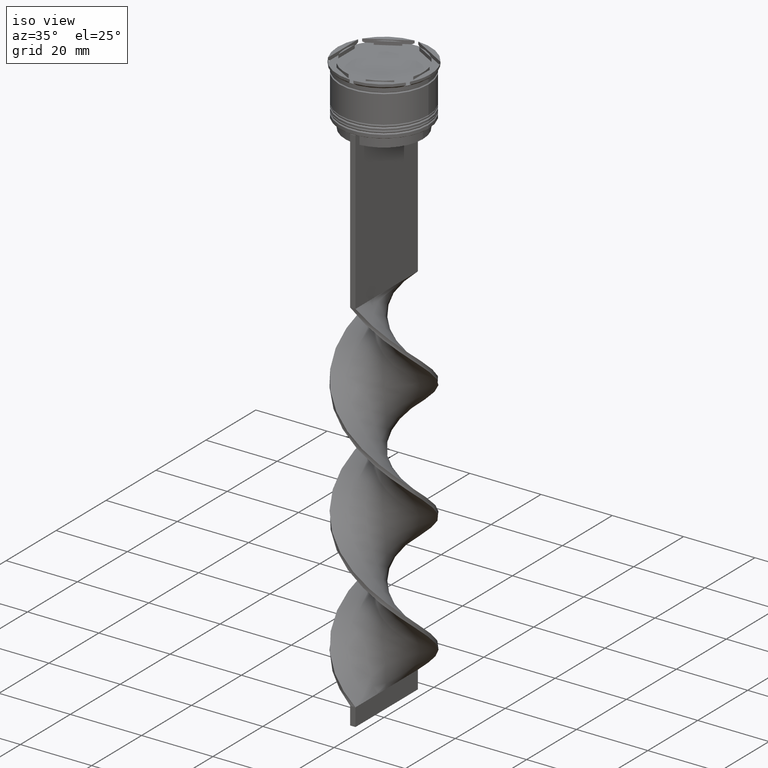
[diagram: clean part render]
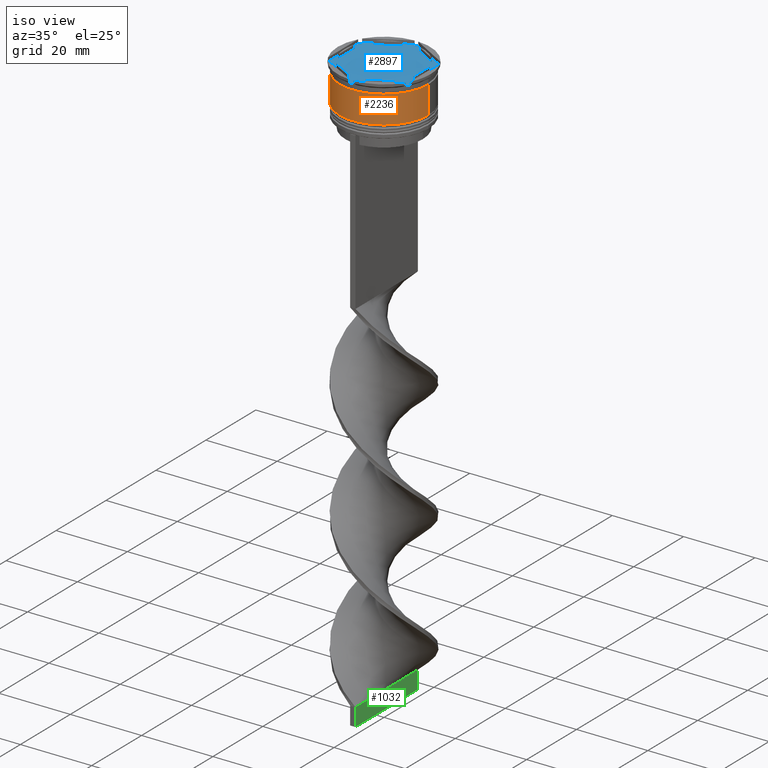
[diagram: same view with three faces highlighted in distinct colors, each labeled with its STEP entity id]
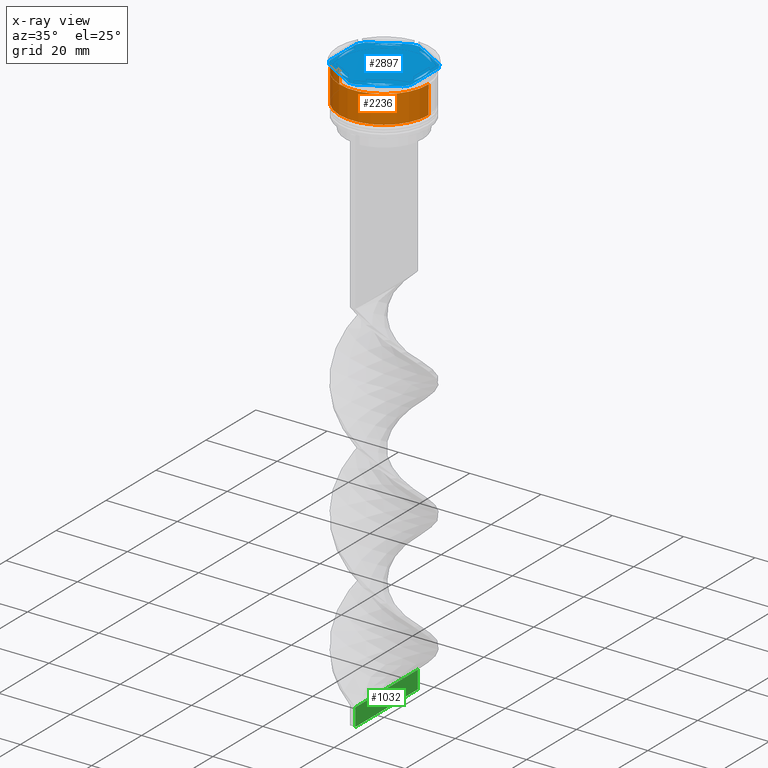
[diagram: x-ray of the same camera — body ghosted, the three highlighted faces saturated]
A machine part, iso view with three faces highlighted in distinct colors.
The next image is the same camera in x-ray (body ghosted, the three faces saturated) — at least one of them is partly hidden behind the body in this view.
Their STEP definitions:

[orange] entity #2236 — the highlighted cylindrical surface (partial cylindrical patch) has radius 12.5 mm, axis along (-0, -0, 1).
#214 = CARTESIAN_POINT ( 'NONE',  ( -12.50000000000000355, 1.530808498934191916E-15, -10.50000000000000178 ) ) ;
#223 = VECTOR ( 'NONE', #3344, 1000.000000000000000 ) ;
#271 = DIRECTION ( 'NONE',  ( -0.000000000000000000, -0.000000000000000000, 1.000000000000000000 ) ) ;
#332 = DIRECTION ( 'NONE',  ( 1.000000000000000000, 0.000000000000000000, 0.000000000000000000 ) ) ;
#362 = LINE ( 'NONE', #3480, #1026 ) ;
#412 = EDGE_CURVE ( 'NONE', #3936, #3861, #1887, .T. ) ;
#417 = EDGE_CURVE ( 'NONE', #2387, #3936, #1771, .T. ) ;
#609 = CARTESIAN_POINT ( 'NONE',  ( 12.49999999999999822, 0.000000000000000000, -2.699999999999999289 ) ) ;
#653 = CARTESIAN_POINT ( 'NONE',  ( -12.49999999999999822, 1.530808498934191324E-15, -2.699999999999999289 ) ) ;
#696 = VERTEX_POINT ( 'NONE', #1449 ) ;
#770 = ORIENTED_EDGE ( 'NONE', *, *, #412, .F. ) ;
#846 = EDGE_CURVE ( 'NONE', #696, #3861, #362, .T. ) ;
#981 = CYLINDRICAL_SURFACE ( 'NONE', #3025, 12.50000000000000000 ) ;
#1026 = VECTOR ( 'NONE', #1928, 1000.000000000000000 ) ;
#1105 = DIRECTION ( 'NONE',  ( -0.000000000000000000, -0.000000000000000000, 1.000000000000000000 ) ) ;
#1236 = CARTESIAN_POINT ( 'NONE',  ( 0.000000000000000000, 0.000000000000000000, 0.000000000000000000 ) ) ;
#1288 = EDGE_CURVE ( 'NONE', #2387, #696, #2688, .T. ) ;
#1420 = DIRECTION ( 'NONE',  ( 1.000000000000000000, 0.000000000000000000, 0.000000000000000000 ) ) ;
#1440 = CARTESIAN_POINT ( 'NONE',  ( -12.50000000000000000, 1.530808498934191521E-15, 0.000000000000000000 ) ) ;
#1449 = CARTESIAN_POINT ( 'NONE',  ( 12.50000000000000178, 0.000000000000000000, -10.50000000000000178 ) ) ;
#1771 = LINE ( 'NONE', #1440, #223 ) ;
#1887 = CIRCLE ( 'NONE', #2896, 12.49999999999999822 ) ;
#1928 = DIRECTION ( 'NONE',  ( -0.000000000000000000, -0.000000000000000000, 1.000000000000000000 ) ) ;
#2236 = ADVANCED_FACE ( 'NONE', ( #3200 ), #981, .T. ) ;
#2387 = VERTEX_POINT ( 'NONE', #214 ) ;
#2688 = CIRCLE ( 'NONE', #3088, 12.50000000000000178 ) ;
#2733 = CARTESIAN_POINT ( 'NONE',  ( 0.000000000000000000, 0.000000000000000000, -2.699999999999999289 ) ) ;
#2896 = AXIS2_PLACEMENT_3D ( 'NONE', #2733, #1105, #3385 ) ;
#2989 = CARTESIAN_POINT ( 'NONE',  ( 0.000000000000000000, 0.000000000000000000, -10.50000000000000178 ) ) ;
#3025 = AXIS2_PLACEMENT_3D ( 'NONE', #1236, #271, #332 ) ;
#3088 = AXIS2_PLACEMENT_3D ( 'NONE', #2989, #3988, #1420 ) ;
#3200 = FACE_OUTER_BOUND ( 'NONE', #3272, .T. ) ;
#3272 = EDGE_LOOP ( 'NONE', ( #4143, #3484, #3570, #770 ) ) ;
#3344 = DIRECTION ( 'NONE',  ( -0.000000000000000000, -0.000000000000000000, 1.000000000000000000 ) ) ;
#3385 = DIRECTION ( 'NONE',  ( 1.000000000000000000, 0.000000000000000000, 0.000000000000000000 ) ) ;
#3480 = CARTESIAN_POINT ( 'NONE',  ( 12.50000000000000000, 0.000000000000000000, 0.000000000000000000 ) ) ;
#3484 = ORIENTED_EDGE ( 'NONE', *, *, #1288, .T. ) ;
#3570 = ORIENTED_EDGE ( 'NONE', *, *, #846, .T. ) ;
#3861 = VERTEX_POINT ( 'NONE', #609 ) ;
#3936 = VERTEX_POINT ( 'NONE', #653 ) ;
#3988 = DIRECTION ( 'NONE',  ( -0.000000000000000000, -0.000000000000000000, 1.000000000000000000 ) ) ;
#4143 = ORIENTED_EDGE ( 'NONE', *, *, #417, .F. ) ;

[blue] entity #2897 — the highlighted planar face has unit normal (0, 0, 1).
#23 = CARTESIAN_POINT ( 'NONE',  ( 0.000000000000000000, 0.000000000000000000, -1.000000000000000000 ) ) ;
#34 = CIRCLE ( 'NONE', #4034, 11.00000000000000000 ) ;
#36 = DIRECTION ( 'NONE',  ( -1.430775808321104180E-16, -1.000000000000000000, 0.000000000000000000 ) ) ;
#43 = CARTESIAN_POINT ( 'NONE',  ( -11.50000000000000000, 5.388877434122992582, -1.000000000000000000 ) ) ;
#72 = CARTESIAN_POINT ( 'NONE',  ( 0.000000000000000000, 13.27905619136138959, -1.000000000000000000 ) ) ;
#103 = VERTEX_POINT ( 'NONE', #3521 ) ;
#113 = EDGE_CURVE ( 'NONE', #1591, #2309, #1838, .T. ) ;
#118 = CARTESIAN_POINT ( 'NONE',  ( 2.410545827099865868, -10.73262637081210791, -1.000000000000000888 ) ) ;
#138 = ORIENTED_EDGE ( 'NONE', *, *, #3693, .F. ) ;
#151 = CIRCLE ( 'NONE', #623, 12.69999999999999929 ) ;
#188 = ORIENTED_EDGE ( 'NONE', *, *, #2572, .F. ) ;
#192 = VERTEX_POINT ( 'NONE', #43 ) ;
#193 = EDGE_LOOP ( 'NONE', ( #2709, #2347, #2540, #3147, #2063, #909, #1445, #3479, #3003, #475, #781, #975 ) ) ;
#238 = EDGE_LOOP ( 'NONE', ( #2842, #3103 ) ) ;
#239 = EDGE_CURVE ( 'NONE', #192, #3230, #2154, .T. ) ;
#252 = CARTESIAN_POINT ( 'NONE',  ( -11.00000000000000000, 0.000000000000000000, -1.000000000000000000 ) ) ;
#293 = CIRCLE ( 'NONE', #1631, 12.69999999999999929 ) ;
#305 = CARTESIAN_POINT ( 'NONE',  ( -2.410545827099876082, -10.73262637081210435, -1.000000000000000888 ) ) ;
#326 = DIRECTION ( 'NONE',  ( 1.000000000000000000, 0.000000000000000000, 0.000000000000000000 ) ) ;
#342 = DIRECTION ( 'NONE',  ( 0.8660254037844387076, -0.4999999999999999445, 0.000000000000000000 ) ) ;
#345 = EDGE_LOOP ( 'NONE', ( #1511, #188 ) ) ;
#432 = VECTOR ( 'NONE', #1172, 1000.000000000000000 ) ;
#463 = DIRECTION ( 'NONE',  ( 0.000000000000000000, 0.000000000000000000, 1.000000000000000000 ) ) ;
#475 = ORIENTED_EDGE ( 'NONE', *, *, #3021, .F. ) ;
#488 = AXIS2_PLACEMENT_3D ( 'NONE', #859, #463, #2369 ) ;
#499 = CARTESIAN_POINT ( 'NONE',  ( 2.410545827099861871, 10.73262637081210791, -1.000000000000000888 ) ) ;
#503 = DIRECTION ( 'NONE',  ( 0.000000000000000000, 0.000000000000000000, 1.000000000000000000 ) ) ;
#509 = EDGE_CURVE ( 'NONE', #1597, #2071, #2388, .T. ) ;
#532 = CARTESIAN_POINT ( 'NONE',  ( -1.083095244168779780, -12.65373086058253982, -1.000000000000000000 ) ) ;
#534 = ORIENTED_EDGE ( 'NONE', *, *, #769, .F. ) ;
#537 = DIRECTION ( 'NONE',  ( 0.000000000000000000, 0.000000000000000000, 1.000000000000000000 ) ) ;
#565 = EDGE_CURVE ( 'NONE', #3656, #3230, #3017, .T. ) ;
#572 = DIRECTION ( 'NONE',  ( -0.000000000000000000, -0.000000000000000000, -1.000000000000000000 ) ) ;
#586 = FACE_BOUND ( 'NONE', #1796, .T. ) ;
#623 = AXIS2_PLACEMENT_3D ( 'NONE', #1284, #2588, #2516 ) ;
#630 = AXIS2_PLACEMENT_3D ( 'NONE', #1432, #503, #3044 ) ;
#659 = LINE ( 'NONE', #700, #1816 ) ;
#661 = DIRECTION ( 'NONE',  ( 0.8660254037844387076, -0.4999999999999997780, 0.000000000000000000 ) ) ;
#700 = CARTESIAN_POINT ( 'NONE',  ( 10.49999999999999289, -6.062177826491073063, -1.000000000000000888 ) ) ;
#730 = VERTEX_POINT ( 'NONE', #1844 ) ;
#769 = EDGE_CURVE ( 'NONE', #3888, #103, #1470, .T. ) ;
#774 = EDGE_CURVE ( 'NONE', #1916, #730, #2116, .T. ) ;
#781 = ORIENTED_EDGE ( 'NONE', *, *, #774, .T. ) ;
#809 = FACE_BOUND ( 'NONE', #1950, .T. ) ;
#811 = AXIS2_PLACEMENT_3D ( 'NONE', #1675, #3875, #1000 ) ;
#818 = VECTOR ( 'NONE', #1156, 1000.000000000000000 ) ;
#848 = DIRECTION ( 'NONE',  ( 1.000000000000000000, 0.000000000000000000, 0.000000000000000000 ) ) ;
#851 = EDGE_CURVE ( 'NONE', #1154, #1373, #151, .T. ) ;
#856 = CARTESIAN_POINT ( 'NONE',  ( 10.49999999999999467, -3.278719262151014835, -1.000000000000000888 ) ) ;
#859 = CARTESIAN_POINT ( 'NONE',  ( 0.000000000000000000, 0.000000000000000000, -1.000000000000000000 ) ) ;
#874 = ORIENTED_EDGE ( 'NONE', *, *, #1442, .F. ) ;
#891 = CARTESIAN_POINT ( 'NONE',  ( -11.50000000000000000, -5.388877434122992582, -1.000000000000000000 ) ) ;
#896 = CIRCLE ( 'NONE', #488, 11.00000000000000000 ) ;
#909 = ORIENTED_EDGE ( 'NONE', *, *, #239, .F. ) ;
#913 = ORIENTED_EDGE ( 'NONE', *, *, #1649, .F. ) ;
#918 = CARTESIAN_POINT ( 'NONE',  ( 11.49999999999999822, -6.639528095680694797, -1.000000000000000000 ) ) ;
#975 = ORIENTED_EDGE ( 'NONE', *, *, #1395, .F. ) ;
#1000 = DIRECTION ( 'NONE',  ( 1.000000000000000000, 0.000000000000000000, 0.000000000000000000 ) ) ;
#1009 = VERTEX_POINT ( 'NONE', #2957 ) ;
#1025 = CIRCLE ( 'NONE', #2029, 12.69999999999999929 ) ;
#1027 = ORIENTED_EDGE ( 'NONE', *, *, #3945, .F. ) ;
#1063 = CARTESIAN_POINT ( 'NONE',  ( 1.083095244168774673, -12.65373086058253982, -1.000000000000000000 ) ) ;
#1116 = CARTESIAN_POINT ( 'NONE',  ( 0.000000000000000000, 0.000000000000000000, -1.000000000000000000 ) ) ;
#1120 = ORIENTED_EDGE ( 'NONE', *, *, #3024, .F. ) ;
#1154 = VERTEX_POINT ( 'NONE', #1984 ) ;
#1156 = DIRECTION ( 'NONE',  ( -0.8660254037844384856, 0.5000000000000002220, 0.000000000000000000 ) ) ;
#1172 = DIRECTION ( 'NONE',  ( 0.8660254037844385966, 0.5000000000000001110, -0.000000000000000000 ) ) ;
#1184 = CARTESIAN_POINT ( 'NONE',  ( 0.000000000000000000, 0.000000000000000000, -1.000000000000000000 ) ) ;
#1235 = CARTESIAN_POINT ( 'NONE',  ( 0.000000000000000000, 0.000000000000000000, -1.000000000000000000 ) ) ;
#1284 = CARTESIAN_POINT ( 'NONE',  ( 0.000000000000000000, 0.000000000000000000, -1.000000000000000000 ) ) ;
#1289 = VERTEX_POINT ( 'NONE', #2656 ) ;
#1313 = VERTEX_POINT ( 'NONE', #118 ) ;
#1373 = VERTEX_POINT ( 'NONE', #891 ) ;
#1395 = EDGE_CURVE ( 'NONE', #1591, #730, #2558, .T. ) ;
#1429 = VECTOR ( 'NONE', #2958, 1000.000000000000114 ) ;
#1432 = CARTESIAN_POINT ( 'NONE',  ( 0.000000000000000000, 0.000000000000000000, -1.000000000000000000 ) ) ;
#1442 = EDGE_CURVE ( 'NONE', #2987, #1289, #1636, .T. ) ;
#1445 = ORIENTED_EDGE ( 'NONE', *, *, #2742, .T. ) ;
#1470 = LINE ( 'NONE', #2745, #818 ) ;
#1471 = CARTESIAN_POINT ( 'NONE',  ( -2.410545827099867200, 10.73262637081210613, -1.000000000000000888 ) ) ;
#1478 = CARTESIAN_POINT ( 'NONE',  ( 1.083095244168781557, 12.65373086058254160, -1.000000000000000000 ) ) ;
#1511 = ORIENTED_EDGE ( 'NONE', *, *, #3824, .F. ) ;
#1517 = DIRECTION ( 'NONE',  ( 1.000000000000000000, 0.000000000000000000, 0.000000000000000000 ) ) ;
#1554 = PLANE ( 'NONE',  #2836 ) ;
#1566 = CIRCLE ( 'NONE', #3031, 11.00000000000000000 ) ;
#1572 = CIRCLE ( 'NONE', #630, 11.00000000000000000 ) ;
#1584 = LINE ( 'NONE', #1665, #3769 ) ;
#1591 = VERTEX_POINT ( 'NONE', #3514 ) ;
#1597 = VERTEX_POINT ( 'NONE', #2268 ) ;
#1601 = CARTESIAN_POINT ( 'NONE',  ( -8.089454172900135021, 7.453907108661106840, -1.000000000000000888 ) ) ;
#1631 = AXIS2_PLACEMENT_3D ( 'NONE', #1184, #572, #2452 ) ;
#1636 = CIRCLE ( 'NONE', #2163, 11.00000000000000000 ) ;
#1649 = EDGE_CURVE ( 'NONE', #1289, #2987, #659, .T. ) ;
#1665 = CARTESIAN_POINT ( 'NONE',  ( 10.49999999999999467, 6.062177826491072175, -1.000000000000000888 ) ) ;
#1675 = CARTESIAN_POINT ( 'NONE',  ( 0.000000000000000000, 0.000000000000000000, -1.000000000000000000 ) ) ;
#1758 = DIRECTION ( 'NONE',  ( 0.000000000000000000, -1.000000000000000000, 0.000000000000000000 ) ) ;
#1769 = EDGE_CURVE ( 'NONE', #1009, #4109, #1946, .T. ) ;
#1796 = EDGE_LOOP ( 'NONE', ( #1027, #2261, #2861 ) ) ;
#1813 = FACE_BOUND ( 'NONE', #345, .T. ) ;
#1816 = VECTOR ( 'NONE', #36, 1000.000000000000000 ) ;
#1838 = LINE ( 'NONE', #918, #3026 ) ;
#1844 = CARTESIAN_POINT ( 'NONE',  ( 10.41690475583121867, -7.264853426459537467, -1.000000000000000000 ) ) ;
#1860 = FACE_BOUND ( 'NONE', #2551, .T. ) ;
#1886 = CIRCLE ( 'NONE', #3694, 11.00000000000000000 ) ;
#1890 = VECTOR ( 'NONE', #661, 1000.000000000000227 ) ;
#1892 = VECTOR ( 'NONE', #3397, 1000.000000000000114 ) ;
#1899 = EDGE_CURVE ( 'NONE', #2050, #1009, #1886, .T. ) ;
#1916 = VERTEX_POINT ( 'NONE', #1063 ) ;
#1946 = LINE ( 'NONE', #3226, #2084 ) ;
#1950 = EDGE_LOOP ( 'NONE', ( #138, #534 ) ) ;
#1971 = DIRECTION ( 'NONE',  ( 0.000000000000000000, 1.000000000000000000, 0.000000000000000000 ) ) ;
#1984 = CARTESIAN_POINT ( 'NONE',  ( -10.41690475583121334, -7.264853426459548125, -1.000000000000000000 ) ) ;
#1985 = CARTESIAN_POINT ( 'NONE',  ( 0.000000000000000000, 0.000000000000000000, -1.000000000000000000 ) ) ;
#2029 = AXIS2_PLACEMENT_3D ( 'NONE', #2241, #4129, #3249 ) ;
#2032 = VERTEX_POINT ( 'NONE', #2082 ) ;
#2050 = VERTEX_POINT ( 'NONE', #252 ) ;
#2063 = ORIENTED_EDGE ( 'NONE', *, *, #565, .T. ) ;
#2071 = VERTEX_POINT ( 'NONE', #1478 ) ;
#2082 = CARTESIAN_POINT ( 'NONE',  ( 8.089454172900135021, -7.453907108661109504, -1.000000000000000888 ) ) ;
#2084 = VECTOR ( 'NONE', #1971, 1000.000000000000000 ) ;
#2096 = CARTESIAN_POINT ( 'NONE',  ( 0.000000000000000000, 0.000000000000000000, -1.000000000000000000 ) ) ;
#2114 = FACE_OUTER_BOUND ( 'NONE', #193, .T. ) ;
#2116 = LINE ( 'NONE', #2429, #1892 ) ;
#2143 = DIRECTION ( 'NONE',  ( -0.000000000000000000, -0.000000000000000000, -1.000000000000000000 ) ) ;
#2154 = CIRCLE ( 'NONE', #811, 12.69999999999999929 ) ;
#2163 = AXIS2_PLACEMENT_3D ( 'NONE', #1235, #3722, #848 ) ;
#2195 = DIRECTION ( 'NONE',  ( 1.000000000000000000, 0.000000000000000000, 0.000000000000000000 ) ) ;
#2204 = EDGE_LOOP ( 'NONE', ( #874, #913 ) ) ;
#2241 = CARTESIAN_POINT ( 'NONE',  ( 0.000000000000000000, 0.000000000000000000, -1.000000000000000000 ) ) ;
#2244 = DIRECTION ( 'NONE',  ( 0.000000000000000000, 0.000000000000000000, 1.000000000000000000 ) ) ;
#2253 = LINE ( 'NONE', #3539, #1890 ) ;
#2260 = EDGE_CURVE ( 'NONE', #1154, #3532, #2253, .T. ) ;
#2261 = ORIENTED_EDGE ( 'NONE', *, *, #1769, .F. ) ;
#2268 = CARTESIAN_POINT ( 'NONE',  ( 10.41690475583121156, 7.264853426459550789, -1.000000000000000000 ) ) ;
#2309 = VERTEX_POINT ( 'NONE', #3483 ) ;
#2347 = ORIENTED_EDGE ( 'NONE', *, *, #3687, .F. ) ;
#2369 = DIRECTION ( 'NONE',  ( 1.000000000000000000, 0.000000000000000000, 0.000000000000000000 ) ) ;
#2388 = LINE ( 'NONE', #3658, #2758 ) ;
#2401 = DIRECTION ( 'NONE',  ( 1.000000000000000000, 0.000000000000000000, -0.000000000000000000 ) ) ;
#2407 = EDGE_CURVE ( 'NONE', #3656, #2071, #293, .T. ) ;
#2429 = CARTESIAN_POINT ( 'NONE',  ( 5.612359739892467248E-18, -13.27905619136138959, -1.000000000000000000 ) ) ;
#2452 = DIRECTION ( 'NONE',  ( 1.000000000000000000, 1.243449787580175325E-14, 0.000000000000000000 ) ) ;
#2460 = DIRECTION ( 'NONE',  ( 1.000000000000000000, 0.000000000000000000, 0.000000000000000000 ) ) ;
#2480 = CARTESIAN_POINT ( 'NONE',  ( 8.089454172900138573, 7.453907108661105063, -1.000000000000000888 ) ) ;
#2516 = DIRECTION ( 'NONE',  ( 1.000000000000000000, 7.105427357601001859E-15, 0.000000000000000000 ) ) ;
#2540 = ORIENTED_EDGE ( 'NONE', *, *, #509, .T. ) ;
#2547 = ORIENTED_EDGE ( 'NONE', *, *, #3577, .F. ) ;
#2551 = EDGE_LOOP ( 'NONE', ( #1120, #2547 ) ) ;
#2558 = CIRCLE ( 'NONE', #2967, 12.69999999999999929 ) ;
#2567 = VERTEX_POINT ( 'NONE', #1601 ) ;
#2572 = EDGE_CURVE ( 'NONE', #2940, #3459, #1584, .T. ) ;
#2588 = DIRECTION ( 'NONE',  ( -0.000000000000000000, -0.000000000000000000, -1.000000000000000000 ) ) ;
#2643 = CARTESIAN_POINT ( 'NONE',  ( -10.49999999999999822, 3.278719262151000624, -1.000000000000000888 ) ) ;
#2656 = CARTESIAN_POINT ( 'NONE',  ( 10.49999999999999467, 3.278719262151012170, -1.000000000000000888 ) ) ;
#2684 = DIRECTION ( 'NONE',  ( -0.8660254037844388186, 0.4999999999999997224, 0.000000000000000000 ) ) ;
#2685 = CARTESIAN_POINT ( 'NONE',  ( -1.083095244168783333, 12.65373086058254160, -1.000000000000000000 ) ) ;
#2709 = ORIENTED_EDGE ( 'NONE', *, *, #113, .T. ) ;
#2712 = DIRECTION ( 'NONE',  ( -0.8660254037844387076, -0.4999999999999999445, 0.000000000000000000 ) ) ;
#2741 = FACE_BOUND ( 'NONE', #238, .T. ) ;
#2742 = EDGE_CURVE ( 'NONE', #192, #1373, #3957, .T. ) ;
#2745 = CARTESIAN_POINT ( 'NONE',  ( -10.49999999999999822, -6.062177826491068622, -1.000000000000000888 ) ) ;
#2746 = CARTESIAN_POINT ( 'NONE',  ( -2.602085213965210642E-15, -12.12435565298214080, -1.000000000000000888 ) ) ;
#2756 = LINE ( 'NONE', #4033, #432 ) ;
#2758 = VECTOR ( 'NONE', #2684, 1000.000000000000000 ) ;
#2771 = VECTOR ( 'NONE', #2712, 999.9999999999998863 ) ;
#2836 = AXIS2_PLACEMENT_3D ( 'NONE', #3685, #537, #2401 ) ;
#2842 = ORIENTED_EDGE ( 'NONE', *, *, #3747, .F. ) ;
#2861 = ORIENTED_EDGE ( 'NONE', *, *, #1899, .F. ) ;
#2864 = DIRECTION ( 'NONE',  ( 1.306360520641008153E-16, 1.000000000000000000, 0.000000000000000000 ) ) ;
#2897 = ADVANCED_FACE ( 'NONE', ( #1813, #3078, #2741, #809, #586, #1860, #2114 ), #1554, .T. ) ;
#2940 = VERTEX_POINT ( 'NONE', #499 ) ;
#2957 = CARTESIAN_POINT ( 'NONE',  ( -10.49999999999999822, -3.278719262151000624, -1.000000000000000888 ) ) ;
#2958 = DIRECTION ( 'NONE',  ( -0.8660254037844385966, -0.5000000000000001110, 0.000000000000000000 ) ) ;
#2966 = VECTOR ( 'NONE', #1758, 1000.000000000000000 ) ;
#2967 = AXIS2_PLACEMENT_3D ( 'NONE', #3451, #2143, #2460 ) ;
#2977 = CARTESIAN_POINT ( 'NONE',  ( -11.50000000000000000, 6.639528095680691244, -1.000000000000000000 ) ) ;
#2987 = VERTEX_POINT ( 'NONE', #856 ) ;
#3003 = ORIENTED_EDGE ( 'NONE', *, *, #2260, .T. ) ;
#3017 = LINE ( 'NONE', #72, #1429 ) ;
#3021 = EDGE_CURVE ( 'NONE', #1916, #3532, #1025, .T. ) ;
#3024 = EDGE_CURVE ( 'NONE', #3626, #2567, #1566, .T. ) ;
#3026 = VECTOR ( 'NONE', #2864, 1000.000000000000000 ) ;
#3031 = AXIS2_PLACEMENT_3D ( 'NONE', #23, #3478, #2195 ) ;
#3044 = DIRECTION ( 'NONE',  ( 1.000000000000000000, 0.000000000000000000, 0.000000000000000000 ) ) ;
#3078 = FACE_BOUND ( 'NONE', #2204, .T. ) ;
#3103 = ORIENTED_EDGE ( 'NONE', *, *, #3767, .F. ) ;
#3147 = ORIENTED_EDGE ( 'NONE', *, *, #2407, .F. ) ;
#3208 = CARTESIAN_POINT ( 'NONE',  ( 0.000000000000000000, 0.000000000000000000, -1.000000000000000000 ) ) ;
#3226 = CARTESIAN_POINT ( 'NONE',  ( -10.49999999999999822, 6.062177826491068622, -1.000000000000000888 ) ) ;
#3230 = VERTEX_POINT ( 'NONE', #3977 ) ;
#3245 = CIRCLE ( 'NONE', #3852, 11.00000000000000000 ) ;
#3249 = DIRECTION ( 'NONE',  ( 1.000000000000000000, 0.000000000000000000, 0.000000000000000000 ) ) ;
#3397 = DIRECTION ( 'NONE',  ( 0.8660254037844385966, 0.4999999999999999445, 0.000000000000000000 ) ) ;
#3398 = LINE ( 'NONE', #2746, #2771 ) ;
#3416 = DIRECTION ( 'NONE',  ( -0.000000000000000000, -0.000000000000000000, -1.000000000000000000 ) ) ;
#3442 = CIRCLE ( 'NONE', #4111, 12.69999999999999929 ) ;
#3451 = CARTESIAN_POINT ( 'NONE',  ( 0.000000000000000000, 0.000000000000000000, -1.000000000000000000 ) ) ;
#3459 = VERTEX_POINT ( 'NONE', #2480 ) ;
#3478 = DIRECTION ( 'NONE',  ( 0.000000000000000000, 0.000000000000000000, 1.000000000000000000 ) ) ;
#3479 = ORIENTED_EDGE ( 'NONE', *, *, #851, .F. ) ;
#3483 = CARTESIAN_POINT ( 'NONE',  ( 11.49999999999999822, 5.388877434122992582, -1.000000000000000000 ) ) ;
#3514 = CARTESIAN_POINT ( 'NONE',  ( 11.49999999999999822, -5.388877434122996135, -1.000000000000000000 ) ) ;
#3521 = CARTESIAN_POINT ( 'NONE',  ( -8.089454172900133244, -7.453907108661111280, -1.000000000000000888 ) ) ;
#3532 = VERTEX_POINT ( 'NONE', #532 ) ;
#3539 = CARTESIAN_POINT ( 'NONE',  ( -11.50000000000000000, -6.639528095680696573, -1.000000000000000000 ) ) ;
#3577 = EDGE_CURVE ( 'NONE', #2567, #3626, #2756, .T. ) ;
#3626 = VERTEX_POINT ( 'NONE', #1471 ) ;
#3656 = VERTEX_POINT ( 'NONE', #2685 ) ;
#3658 = CARTESIAN_POINT ( 'NONE',  ( 11.50000000000000000, 6.639528095680698350, -1.000000000000000000 ) ) ;
#3685 = CARTESIAN_POINT ( 'NONE',  ( 0.000000000000000000, 0.000000000000000000, -1.000000000000000000 ) ) ;
#3687 = EDGE_CURVE ( 'NONE', #1597, #2309, #3442, .T. ) ;
#3693 = EDGE_CURVE ( 'NONE', #103, #3888, #896, .T. ) ;
#3694 = AXIS2_PLACEMENT_3D ( 'NONE', #1985, #3894, #3952 ) ;
#3722 = DIRECTION ( 'NONE',  ( 0.000000000000000000, 0.000000000000000000, 1.000000000000000000 ) ) ;
#3732 = DIRECTION ( 'NONE',  ( 1.000000000000000000, -1.776356839400250465E-14, 0.000000000000000000 ) ) ;
#3747 = EDGE_CURVE ( 'NONE', #1313, #2032, #1572, .T. ) ;
#3767 = EDGE_CURVE ( 'NONE', #2032, #1313, #3398, .T. ) ;
#3769 = VECTOR ( 'NONE', #342, 999.9999999999998863 ) ;
#3824 = EDGE_CURVE ( 'NONE', #3459, #2940, #34, .T. ) ;
#3852 = AXIS2_PLACEMENT_3D ( 'NONE', #3208, #2244, #1517 ) ;
#3875 = DIRECTION ( 'NONE',  ( -0.000000000000000000, -0.000000000000000000, -1.000000000000000000 ) ) ;
#3888 = VERTEX_POINT ( 'NONE', #305 ) ;
#3894 = DIRECTION ( 'NONE',  ( 0.000000000000000000, 0.000000000000000000, 1.000000000000000000 ) ) ;
#3945 = EDGE_CURVE ( 'NONE', #4109, #2050, #3245, .T. ) ;
#3952 = DIRECTION ( 'NONE',  ( 1.000000000000000000, 0.000000000000000000, 0.000000000000000000 ) ) ;
#3957 = LINE ( 'NONE', #2977, #2966 ) ;
#3977 = CARTESIAN_POINT ( 'NONE',  ( -10.41690475583121689, 7.264853426459546348, -1.000000000000000000 ) ) ;
#4033 = CARTESIAN_POINT ( 'NONE',  ( -1.734723475976807094E-15, 12.12435565298214080, -1.000000000000000888 ) ) ;
#4034 = AXIS2_PLACEMENT_3D ( 'NONE', #2096, #4086, #326 ) ;
#4086 = DIRECTION ( 'NONE',  ( 0.000000000000000000, 0.000000000000000000, 1.000000000000000000 ) ) ;
#4109 = VERTEX_POINT ( 'NONE', #2643 ) ;
#4111 = AXIS2_PLACEMENT_3D ( 'NONE', #1116, #3416, #3732 ) ;
#4129 = DIRECTION ( 'NONE',  ( -0.000000000000000000, -0.000000000000000000, -1.000000000000000000 ) ) ;

[green] entity #1032 — the highlighted planar face has unit normal (-1, 0, 0).
#91 = DIRECTION ( 'NONE',  ( -1.000000000000000000, 1.214306433183764966E-16, 0.000000000000000000 ) ) ;
#183 = DIRECTION ( 'NONE',  ( -1.214306433183764966E-16, -1.000000000000000000, 0.000000000000000000 ) ) ;
#200 = CARTESIAN_POINT ( 'NONE',  ( 0.7500000000000013323, 12.50000000000000000, -159.0000000000000000 ) ) ;
#249 = ORIENTED_EDGE ( 'NONE', *, *, #2874, .F. ) ;
#277 = LINE ( 'NONE', #3458, #4105 ) ;
#321 = CARTESIAN_POINT ( 'NONE',  ( 0.7500000000000013323, 12.50000000000000000, -164.0000000000000000 ) ) ;
#427 = CARTESIAN_POINT ( 'NONE',  ( 0.7500000000000013323, 12.50000000000000000, -164.0000000000000000 ) ) ;
#667 = EDGE_CURVE ( 'NONE', #3620, #3537, #3081, .T. ) ;
#743 = CARTESIAN_POINT ( 'NONE',  ( 0.7499999999999983347, -12.50000000000000000, -164.0000000000000000 ) ) ;
#893 = VECTOR ( 'NONE', #3309, 1000.000000000000000 ) ;
#962 = VERTEX_POINT ( 'NONE', #3392 ) ;
#1032 = ADVANCED_FACE ( 'NONE', ( #3257 ), #2647, .F. ) ;
#1170 = CARTESIAN_POINT ( 'NONE',  ( 0.7499999999999983347, -12.50000000000000000, -159.0000000000000000 ) ) ;
#1372 = EDGE_CURVE ( 'NONE', #3537, #962, #3377, .T. ) ;
#1477 = CARTESIAN_POINT ( 'NONE',  ( 0.7499999999999992228, -4.166666666666667851, -159.0000000000000000 ) ) ;
#1514 = DIRECTION ( 'NONE',  ( -0.000000000000000000, -0.000000000000000000, 1.000000000000000000 ) ) ;
#1550 = ORIENTED_EDGE ( 'NONE', *, *, #667, .T. ) ;
#1652 = ORIENTED_EDGE ( 'NONE', *, *, #3185, .F. ) ;
#1907 = LINE ( 'NONE', #321, #893 ) ;
#2449 = DIRECTION ( 'NONE',  ( -0.000000000000000000, -0.000000000000000000, 1.000000000000000000 ) ) ;
#2632 = VECTOR ( 'NONE', #2449, 1000.000000000000000 ) ;
#2647 = PLANE ( 'NONE',  #3237 ) ;
#2816 = EDGE_LOOP ( 'NONE', ( #3547, #249, #1652, #1550 ) ) ;
#2874 = EDGE_CURVE ( 'NONE', #3186, #962, #277, .T. ) ;
#3081 = LINE ( 'NONE', #3352, #2632 ) ;
#3154 = CARTESIAN_POINT ( 'NONE',  ( 0.7500000000000013323, 12.50000000000000000, -159.0000000000000000 ) ) ;
#3185 = EDGE_CURVE ( 'NONE', #3620, #3186, #1907, .T. ) ;
#3186 = VERTEX_POINT ( 'NONE', #743 ) ;
#3237 = AXIS2_PLACEMENT_3D ( 'NONE', #427, #91, #183 ) ;
#3257 = FACE_OUTER_BOUND ( 'NONE', #2816, .T. ) ;
#3309 = DIRECTION ( 'NONE',  ( -1.214306433183764966E-16, -1.000000000000000000, 0.000000000000000000 ) ) ;
#3352 = CARTESIAN_POINT ( 'NONE',  ( 0.7500000000000013323, 12.50000000000000000, -164.0000000000000000 ) ) ;
#3377 = B_SPLINE_CURVE_WITH_KNOTS ( 'NONE', 3,
 ( #3154, #3808, #1477, #1170 ),
 .UNSPECIFIED., .F., .F.,
 ( 4, 4 ),
 ( 0.000000000000000000, 1.000000000000000000 ),
 .UNSPECIFIED. ) ;
#3392 = CARTESIAN_POINT ( 'NONE',  ( 0.7499999999999983347, -12.50000000000000000, -159.0000000000000000 ) ) ;
#3458 = CARTESIAN_POINT ( 'NONE',  ( 0.7499999999999983347, -12.50000000000000000, -164.0000000000000000 ) ) ;
#3537 = VERTEX_POINT ( 'NONE', #200 ) ;
#3547 = ORIENTED_EDGE ( 'NONE', *, *, #1372, .T. ) ;
#3620 = VERTEX_POINT ( 'NONE', #4100 ) ;
#3808 = CARTESIAN_POINT ( 'NONE',  ( 0.7500000000000003331, 4.166666666666667851, -159.0000000000000000 ) ) ;
#4100 = CARTESIAN_POINT ( 'NONE',  ( 0.7500000000000013323, 12.50000000000000000, -164.0000000000000000 ) ) ;
#4105 = VECTOR ( 'NONE', #1514, 1000.000000000000000 ) ;